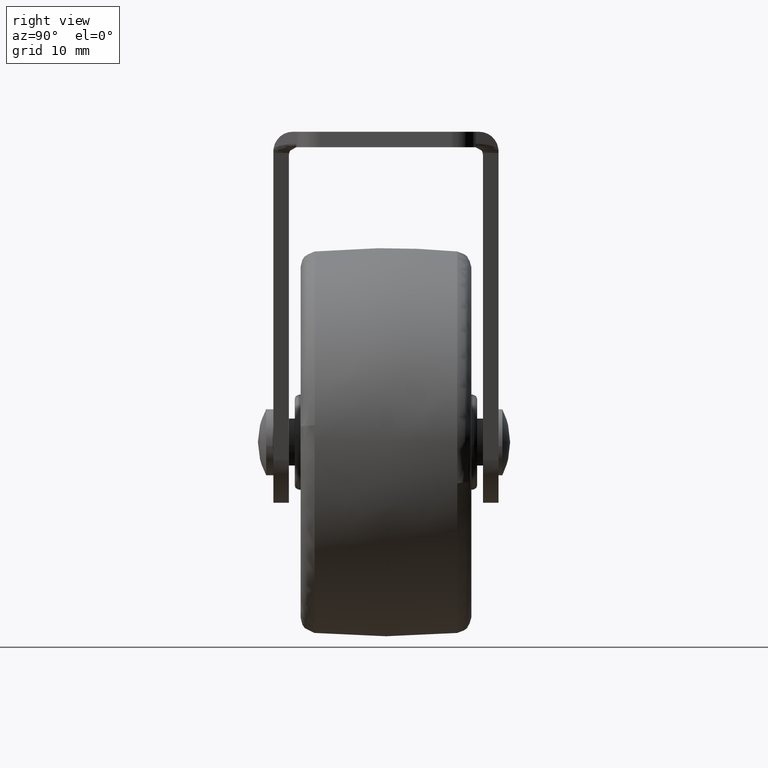
[diagram: clean part render]
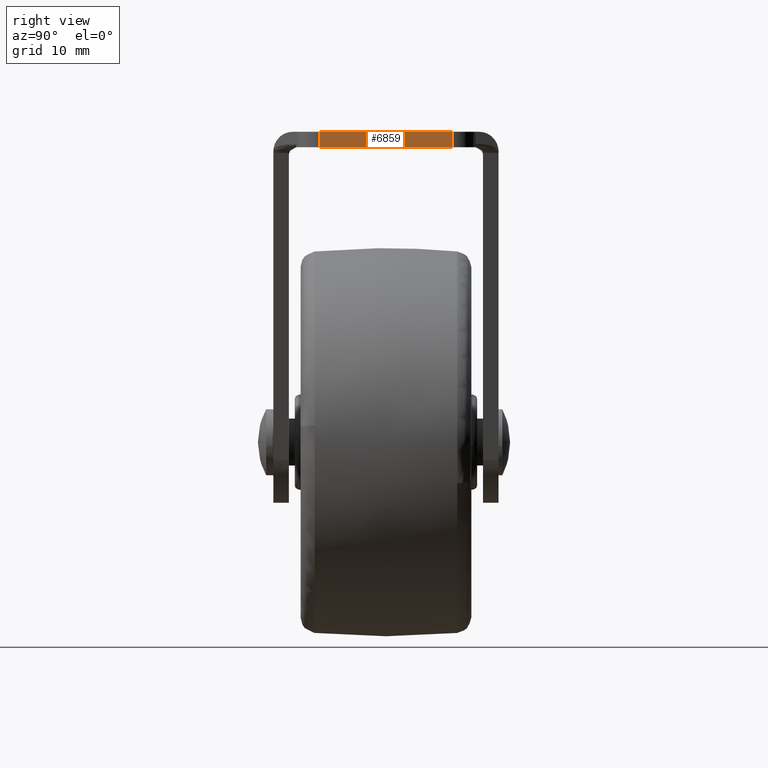
[diagram: same view with one face highlighted and labeled with its STEP entity id]
A machine part, right view. The second image highlights one B-rep face of the part: STEP entity #6859.
In plain terms, the highlighted face is a freeform B-spline surface patch.
Its self-contained STEP definition (entity closure, byte-faithful):
#6467=CARTESIAN_POINT('',(30.0,8.500000000000000,-2.0));
#6468=VERTEX_POINT('',#6467);
#6482=CARTESIAN_POINT('',(30.0,-8.500000000000000,-2.0));
#6483=VERTEX_POINT('',#6482);
#6484=CARTESIAN_POINT('',(30.0,-8.500000000000000,-2.0));
#6485=CARTESIAN_POINT('',(30.0,8.500000000000000,-2.0));
#6486=QUASI_UNIFORM_CURVE('',1,(#6484,#6485),.UNSPECIFIED.,.F.,.U.);
#6487=EDGE_CURVE('',#6483,#6468,#6486,.T.);
#6636=CARTESIAN_POINT('',(30.0,-8.500000000000000,0.0));
#6637=VERTEX_POINT('',#6636);
#6651=CARTESIAN_POINT('',(30.0,8.500000000000000,0.0));
#6652=VERTEX_POINT('',#6651);
#6653=CARTESIAN_POINT('',(30.0,-8.500000000000000,0.0));
#6654=CARTESIAN_POINT('',(30.0,8.500000000000000,0.0));
#6655=QUASI_UNIFORM_CURVE('',1,(#6653,#6654),.UNSPECIFIED.,.F.,.U.);
#6656=EDGE_CURVE('',#6637,#6652,#6655,.T.);
#6833=CARTESIAN_POINT('',(30.0,8.500000000000000,-2.0));
#6834=CARTESIAN_POINT('',(30.0,8.500000000000000,0.0));
#6835=QUASI_UNIFORM_CURVE('',1,(#6833,#6834),.UNSPECIFIED.,.F.,.U.);
#6836=EDGE_CURVE('',#6468,#6652,#6835,.T.);
#6844=CARTESIAN_POINT('',(30.0,-9.349149967050698,0.099899996123612));
#6845=CARTESIAN_POINT('',(30.0,-9.349149967050698,-2.099900049767792));
#6846=CARTESIAN_POINT('',(30.0,9.349150423026233,0.099899996123612));
#6847=CARTESIAN_POINT('',(30.0,9.349150423026233,-2.099900049767792));
#6848=B_SPLINE_SURFACE_WITH_KNOTS('',1,1,((#6844,#6846),(#6845,#6847)),.UNSPECIFIED.,.F.,.F.,.U.,(2,2),(2,2),(0.0,2.199800045891404),(0.0,18.698300390076930),.UNSPECIFIED.);
#6849=CARTESIAN_POINT('',(30.0,-8.500000000000000,-2.0));
#6850=CARTESIAN_POINT('',(30.0,-8.500000000000000,0.0));
#6851=QUASI_UNIFORM_CURVE('',1,(#6849,#6850),.UNSPECIFIED.,.F.,.U.);
#6852=EDGE_CURVE('',#6483,#6637,#6851,.T.);
#6853=ORIENTED_EDGE('',*,*,#6852,.F.);
#6854=ORIENTED_EDGE('',*,*,#6487,.T.);
#6855=ORIENTED_EDGE('',*,*,#6836,.T.);
#6856=ORIENTED_EDGE('',*,*,#6656,.F.);
#6857=EDGE_LOOP('',(#6853,#6854,#6855,#6856));
#6858=FACE_OUTER_BOUND('',#6857,.T.);
#6859=ADVANCED_FACE('',(#6858),#6848,.T.);